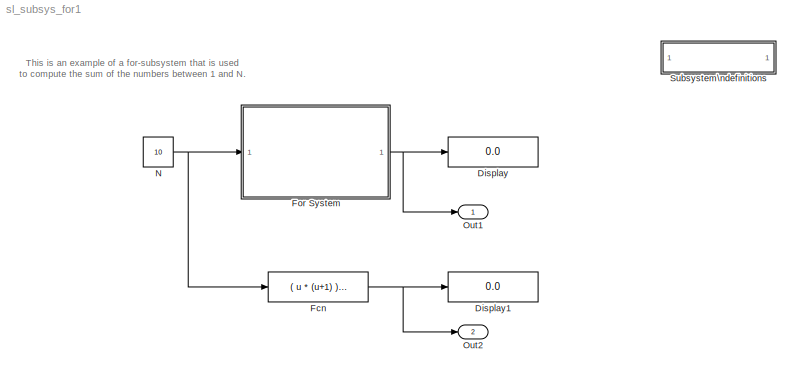
MODEL sl_subsys_for1
KIND model
BLOCK [SubSystem]  Subsystem\ndefinitions
  MaskDisplay = disp('Subsystem\\ndefinitions')\n\n
  MaskIconFrame = on
  MaskIconOpaque = on
  MaskIconRotate = none
  MaskIconUnits = autoscale
  MinAlgLoopOccurrences = off
  OpenFcn = helpview([matlabroot,'/toolbox/simulink/simdemos/sl_subsys_definitions.html']);
  Ports = []
  PropExecContextAcrossSSBoundary = on
  RTWSystemCode = Auto
  TreatAsAtomicUnit = off
BLOCK [Display] Display
  Decimation = 1
  Ports = [1]
BLOCK [Display] Display1
  Decimation = 1
  Ports = [1]
BLOCK [Fcn] Fcn
  Expr = ( u * (u+1) ) / 2
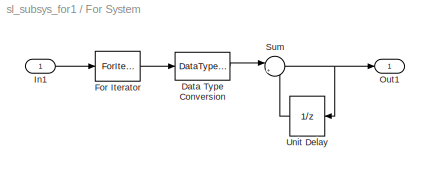
BLOCK [SubSystem] For System
  MinAlgLoopOccurrences = off
  Ports = [1, 1]
  PropExecContextAcrossSSBoundary = on
  RTWSystemCode = Auto
  TreatAsAtomicUnit = on
BLOCK [DataTypeConversion] For System/Data Type Conversion
  OutDataTypeMode = double
BLOCK [ForIterator] For System/For Iterator
  IterationSource = external
  Ports = [1, 1]
  ResetStates = reset
BLOCK [Inport] For System/In1
  IconDisplay = Port number
  LatchInput = off
  Port = 1
BLOCK [Outport] For System/Out1
  IconDisplay = Port number
BLOCK [Sum] For System/Sum
  IconShape = round
  Inputs = |++
  Ports = [2, 1]
BLOCK [UnitDelay] For System/Unit Delay
  SampleTime = -1
BLOCK [Constant] N
  Value = 10
BLOCK [Outport] Out1
  IconDisplay = Port number
BLOCK [Outport] Out2
  IconDisplay = Port number
  Port = 2
ANNOTATION (root): This is an example of a for-subsystem that is used\nto compute the sum of the numbers between 1 and N.
NET Fcn:1 -> Display1:1, Out2:1
LINE For System/Data Type Conversion:1 -> For System/Sum:1
LINE For System/For Iterator:1 -> For System/Data Type Conversion:1
LINE For System/In1:1 -> For System/For Iterator:1
NET For System/Sum:1 -> For System/Out1:1, For System/Unit Delay:1
LINE For System/Unit Delay:1 -> For System/Sum:2
NET For System:1 -> Display:1, Out1:1
NET N:1 -> Fcn:1, For System:1
note: NET lines group one-source signal fan-out (src -> all destinations, sorted); 1:1 wires keep LINE
